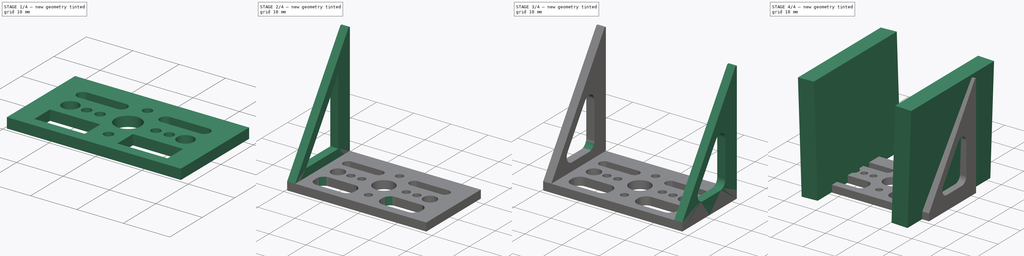
[diagram: build sequence overview — one tinted view per stage of 4, left to right]
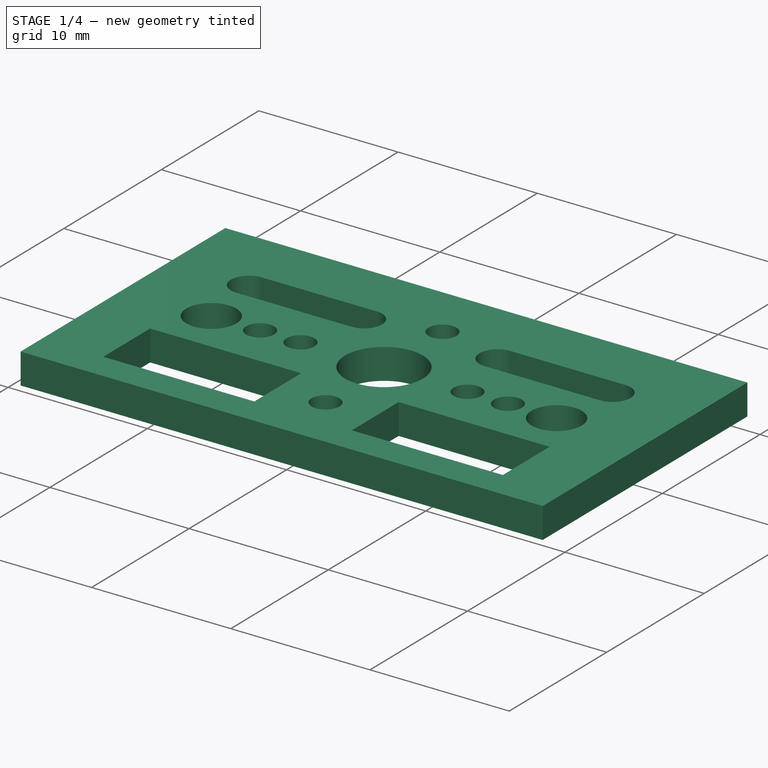
[diagram: stage 1 of 4 — iso view after this stage's code; geometry added in this stage tinted green]
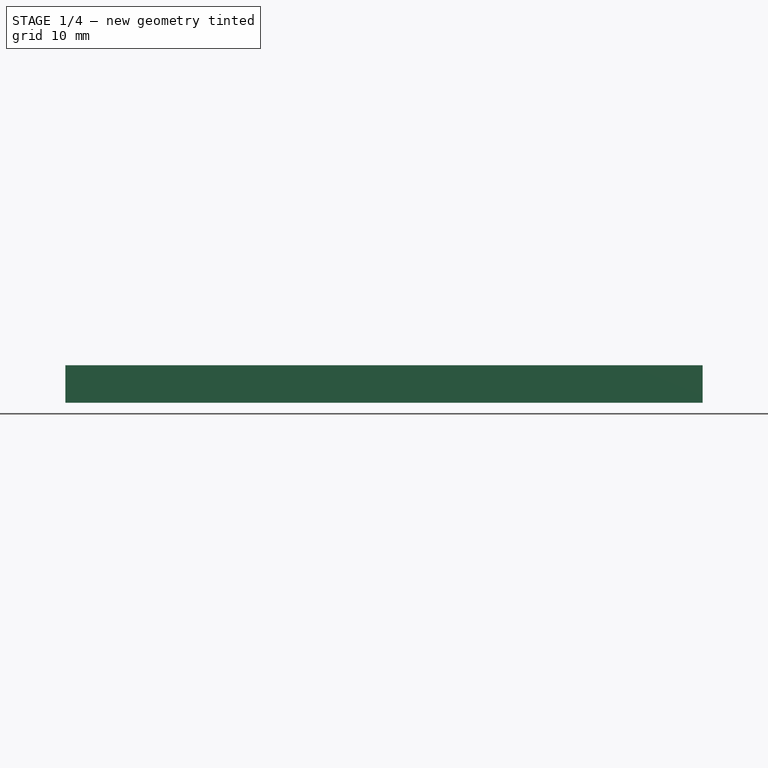
[diagram: stage 1 of 4 — front view after this stage's code; geometry added in this stage tinted green]
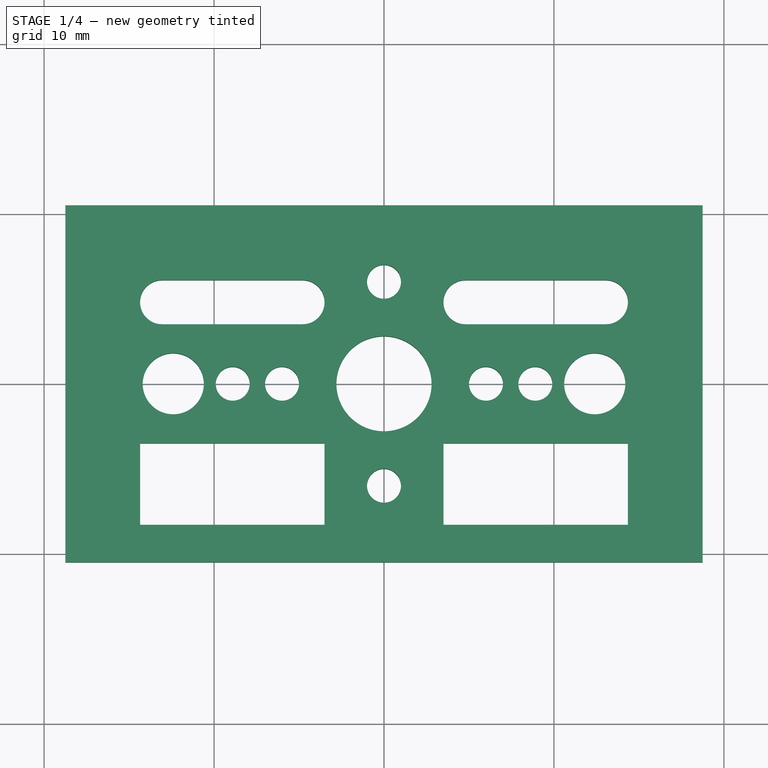
[diagram: stage 1 of 4 — top view after this stage's code; geometry added in this stage tinted green]
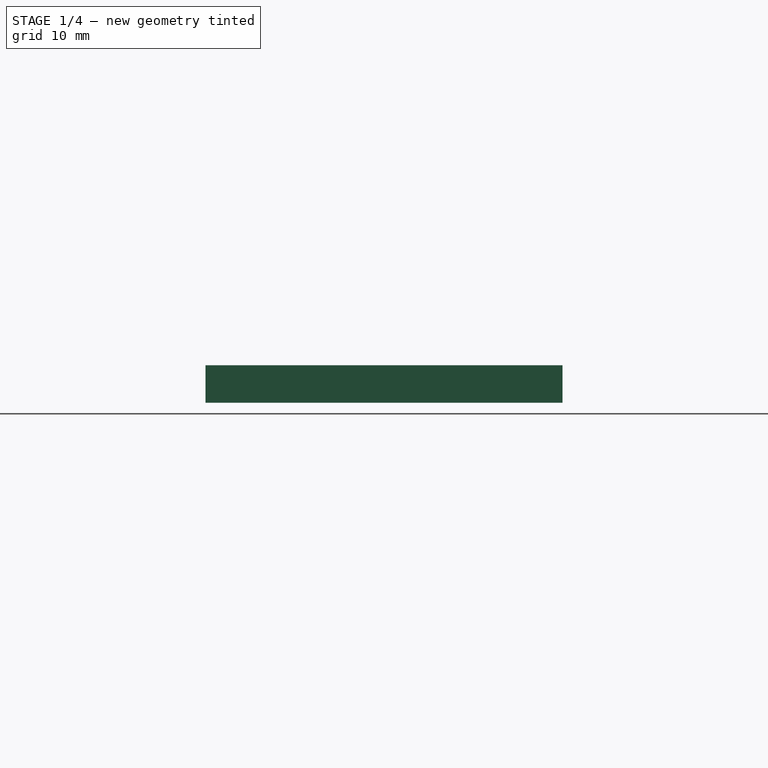
[diagram: stage 1 of 4 — right view after this stage's code; geometry added in this stage tinted green]
FCSTD DOCUMENT  (FreeCAD 0.20R0.20.2)
Label: 016
License: All rights reserved
LicenseURL: http://en.wikipedia.org/wiki/All_rights_reserved
objects: Sketcher::SketchObject×4, Part::Fillet×4, Part::Extrusion×3, Part::Box×2
note: 13 computed .brp shape members not serialized (recipe doc carries the construction recipe); baked Part::Feature solids carry a one-line shape summary decoded from their .brp

FEATURE [Sketcher::SketchObject] Sketch
  FullyConstrained = true
  sketch-geometry (29):
    g0: Circle CenterX=0 CenterY=0 CenterZ=0 NormalX=0 NormalY=0 NormalZ=1 AngleXU=0 Radius=2.8
    g1: LineSegment StartX=18.75 StartY=10.5 StartZ=0 EndX=18.75 EndY=-10.5 EndZ=0
    g2: LineSegment StartX=-18.75 StartY=10.5 StartZ=0 EndX=-18.75 EndY=-10.5 EndZ=0
    g3: LineSegment StartX=-14.35 StartY=6.1 StartZ=0 EndX=-3.5 EndY=6.1 EndZ=0
    g4: LineSegment StartX=-3.5 StartY=6.1 StartZ=0 EndX=-3.5 EndY=3.5 EndZ=0
    g5: LineSegment StartX=-3.5 StartY=3.5 StartZ=0 EndX=-14.35 EndY=3.5 EndZ=0
    g6: LineSegment StartX=-14.35 StartY=3.5 StartZ=0 EndX=-14.35 EndY=6.1 EndZ=0
    g7: LineSegment StartX=14.35 StartY=6.1 StartZ=0 EndX=3.5 EndY=6.1 EndZ=0
    g8: LineSegment StartX=3.5 StartY=6.1 StartZ=0 EndX=3.5 EndY=3.5 EndZ=0
    g9: LineSegment StartX=3.5 StartY=3.5 StartZ=0 EndX=14.35 EndY=3.5 EndZ=0
    g10: LineSegment StartX=14.35 StartY=3.5 StartZ=0 EndX=14.35 EndY=6.1 EndZ=0
    g11: LineSegment StartX=-14.35 StartY=-8.3 StartZ=0 EndX=-3.5 EndY=-8.3 EndZ=0
    g12: LineSegment StartX=-3.5 StartY=-8.3 StartZ=0 EndX=-3.5 EndY=-3.5 EndZ=0
    g13: LineSegment StartX=-3.5 StartY=-3.5 StartZ=0 EndX=-14.35 EndY=-3.5 EndZ=0
    g14: LineSegment StartX=-14.35 StartY=-3.5 StartZ=0 EndX=-14.35 EndY=-8.3 EndZ=0
    g15: LineSegment StartX=14.35 StartY=-8.3 StartZ=0 EndX=3.5 EndY=-8.3 EndZ=0
    g16: LineSegment StartX=3.5 StartY=-8.3 StartZ=0 EndX=3.5 EndY=-3.5 EndZ=0
    g17: LineSegment StartX=3.5 StartY=-3.5 StartZ=0 EndX=14.35 EndY=-3.5 EndZ=0
    g18: LineSegment StartX=14.35 StartY=-3.5 StartZ=0 EndX=14.35 EndY=-8.3 EndZ=0
    g19: LineSegment StartX=-18.75 StartY=10.5 StartZ=0 EndX=18.75 EndY=10.5 EndZ=0
    g20: LineSegment StartX=18.75 StartY=-10.5 StartZ=0 EndX=-18.75 EndY=-10.5 EndZ=0
    g21: Circle CenterX=-6 CenterY=0 CenterZ=0 NormalX=0 NormalY=0 NormalZ=1 AngleXU=0 Radius=1
    g22: Circle CenterX=6 CenterY=0 CenterZ=0 NormalX=0 NormalY=0 NormalZ=1 AngleXU=0 Radius=1
    g23: Circle CenterX=0 CenterY=6 CenterZ=0 NormalX=0 NormalY=0 NormalZ=1 AngleXU=0 Radius=1
    g24: Circle CenterX=0 CenterY=-6 CenterZ=0 NormalX=0 NormalY=0 NormalZ=1 AngleXU=0 Radius=1
    g25: Circle CenterX=-12.4 CenterY=0 CenterZ=0 NormalX=0 NormalY=0 NormalZ=1 AngleXU=0 Radius=1.8
    g26: Circle CenterX=12.4 CenterY=0 CenterZ=0 NormalX=0 NormalY=0 NormalZ=1 AngleXU=0 Radius=1.8
    g27: Circle CenterX=-8.9 CenterY=0 CenterZ=0 NormalX=0 NormalY=0 NormalZ=1 AngleXU=0 Radius=1
    g28: Circle CenterX=8.9 CenterY=0 CenterZ=0 NormalX=0 NormalY=0 NormalZ=1 AngleXU=0 Radius=1
  constraints (67):
    c: Block(g0)
    c: Vertical(g1)
    c: Vertical(g2)
    c: Coincident(g3,g4)
    c: Coincident(g4,g5)
    c: Coincident(g5,g6)
    c: Coincident(g6,g3)
    c: Horizontal(g3)
    c: Horizontal(g5)
    c: Vertical(g4)
    c: Vertical(g6)
    c: Block(g2)
    c: Distance(g2) = 21
    c: Distance(g1) = 21
    c: Coincident(g7,g8)
    c: Coincident(g8,g9)
    c: Coincident(g9,g10)
    c: Coincident(g10,g7)
    c: Horizontal(g7)
    c: Horizontal(g9)
    c: Vertical(g8)
    c: Vertical(g10)
    c: Coincident(g11,g12)
    c: Coincident(g12,g13)
    c: Coincident(g13,g14)
    c: Coincident(g14,g11)
    c: Horizontal(g11)
    c: Horizontal(g13)
    c: Vertical(g12)
    c: Vertical(g14)
    c: Coincident(g15,g16)
    c: Coincident(g16,g17)
    c: Coincident(g17,g18)
    c: Coincident(g18,g15)
    c: Horizontal(g15)
    c: Horizontal(g17)
    c: Vertical(g16)
    c: Vertical(g18)
    c: Block(g1)
    c: Coincident(g19,g2)
    c: Coincident(g19,g1)
    c: Horizontal(g19)
    c: Coincident(g20,g1)
    c: Coincident(g20,g2)
    c: Horizontal(g20)
    c: Block(g19)
    c: Block(g20)
    c: Distance(g3) = 10.85
    c: Distance(g7) = 10.85
    c: Distance(g15) = 10.85
    c: Distance(g13) = 10.85
    c: Block(g17)
    c: Block(g13)
    c: Block(g15)
    c: Block(g11)
    c: Block(g5)
    c: Block(g9)
    c: Distance(g4) = 2.6
    c: Distance(g8) = 2.6
    c: Block(g23)
    c: Block(g21)
    c: Block(g24)
    c: Block(g22)
    c: Block(g25)
    c: Block(g26)
    c: Block(g27)
    c: Block(g28)
FEATURE [Part::Extrusion] Extrude
  Base = -> Sketch
  Dir = (0,0,1)
  DirMode = 2
  FaceMakerClass = Part::FaceMakerBullseye
  LengthFwd = 2.2
  LengthRev = 0
  Solid = true
  Symmetric = false
FEATURE [Part::Fillet] Fillet  label="motorHolder"
  Base = -> Extrude
  Edges = 8 edges r=1.29: [Edge37,Edge38,Edge41,Edge44,Edge49,Edge50,Edge53,Edge56]
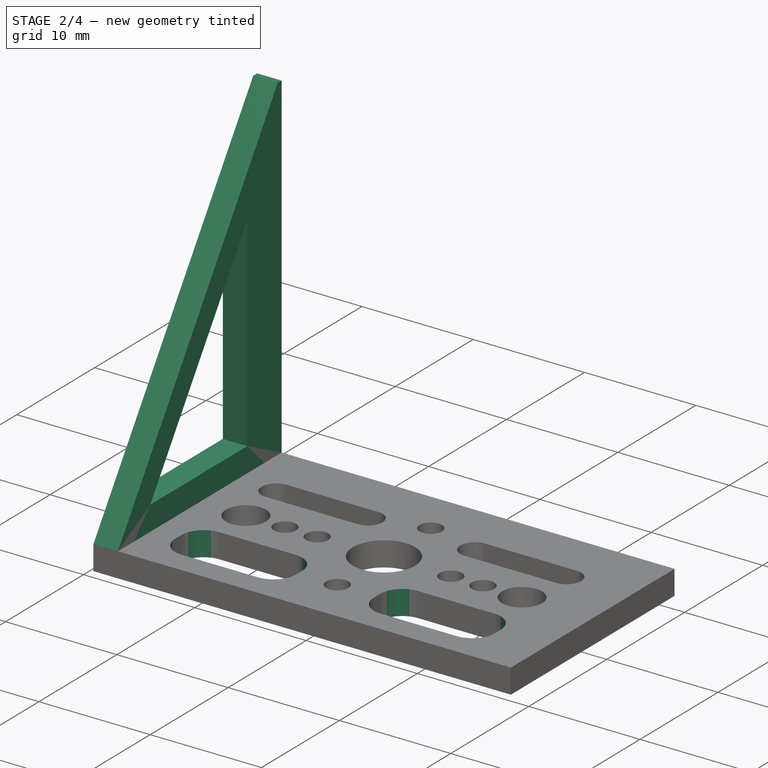
[diagram: stage 2 of 4 — iso view after this stage's code; geometry added in this stage tinted green]
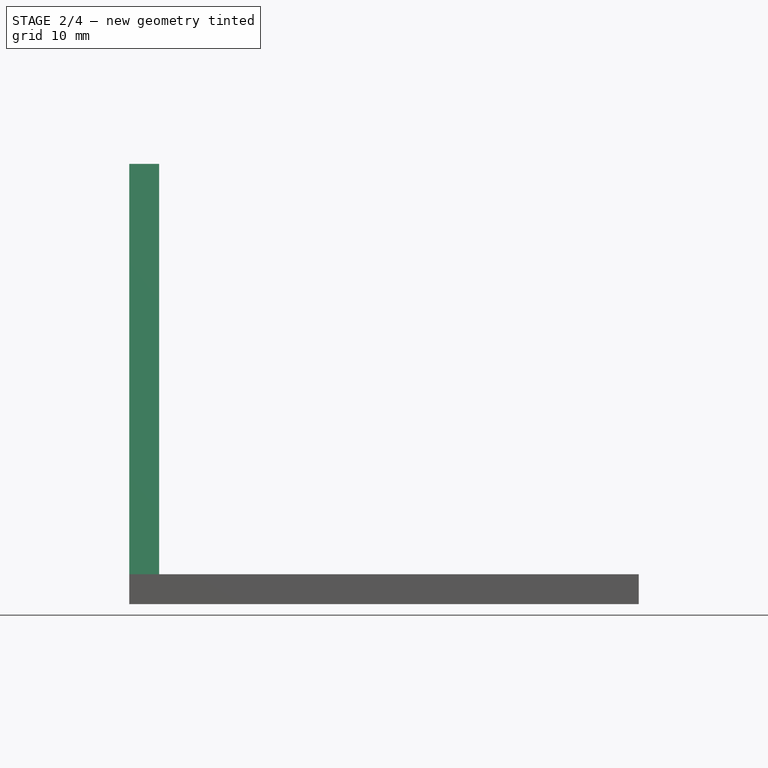
[diagram: stage 2 of 4 — front view after this stage's code; geometry added in this stage tinted green]
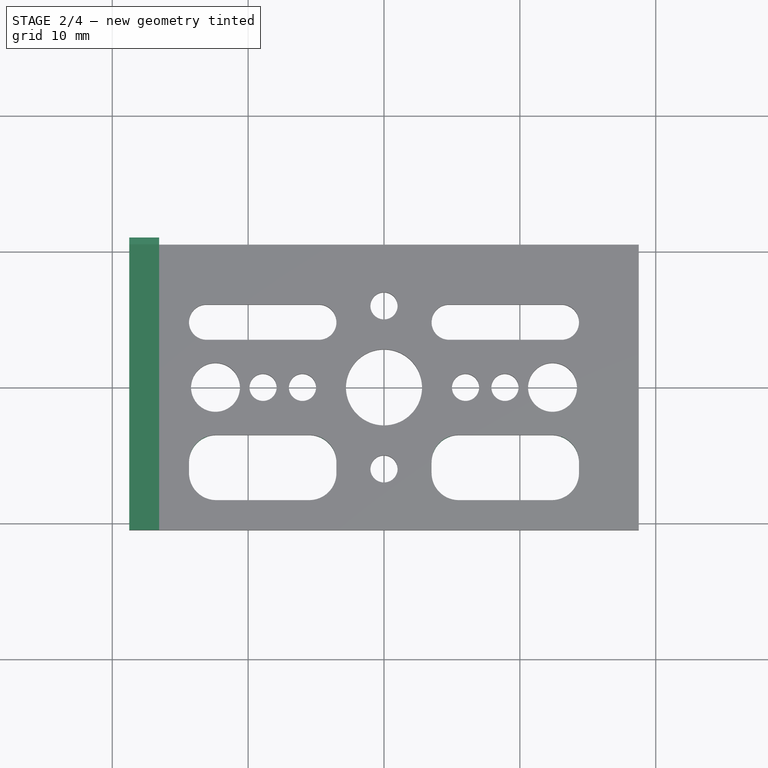
[diagram: stage 2 of 4 — top view after this stage's code; geometry added in this stage tinted green]
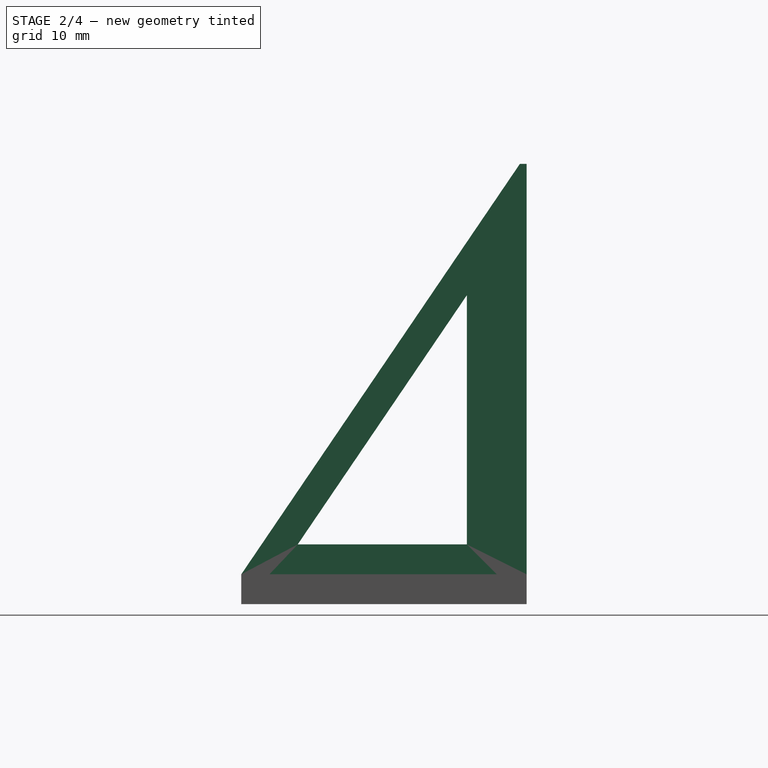
[diagram: stage 2 of 4 — right view after this stage's code; geometry added in this stage tinted green]
FEATURE [Part::Extrusion] Extrude001  label="side"
  Base = -> Sketch001
  Dir = (1,0,0)
  DirMode = 2
  FaceMakerClass = Part::FaceMakerBullseye
  LengthFwd = 2.2
  LengthRev = 0
  Placement = pos=(-18.75,0,0) rot=(0,0,1;0rad)
  Solid = true
  Symmetric = false
FEATURE [Part::Fillet] Fillet004  label="motorHolder001"
  Base = -> Fillet
  Edges = 8 edges r=2: [Edge87,Edge88,Edge89,Edge90,Edge91,Edge92,Edge93,Edge94]
FEATURE [Sketcher::SketchObject] Sketch004
  FullyConstrained = false
  Placement = pos=(0,0,0) rot=(1,0,0;1.5708rad)
  sketch-geometry (28):
    g0: LineSegment StartX=-18.75 StartY=3e-16 StartZ=0 EndX=-18.75 EndY=32.4 EndZ=0
    g1: LineSegment StartX=-18.75 StartY=32.4 StartZ=0 EndX=18.75 EndY=32.4 EndZ=0
    g2: LineSegment StartX=18.75 StartY=3e-16 StartZ=0 EndX=18.75 EndY=32.4 EndZ=0
    g3: LineSegment StartX=-18.75 StartY=3e-16 StartZ=0 EndX=18.75 EndY=3e-16 EndZ=0
    g4: LineSegment StartX=20.8351 StartY=32.7478 StartZ=0 EndX=24.4972 EndY=30.4303 EndZ=0
    g5: LineSegment StartX=19.1017 StartY=34.1576 StartZ=0 EndX=17.8339 EndY=36.9702 EndZ=0
    g6: LineSegment StartX=-21.8169 StartY=33.5961 StartZ=0 EndX=-25.4365 EndY=31.1295 EndZ=0
    g7: LineSegment StartX=-19.0611 StartY=34.1225 StartZ=0 EndX=-13.2615 EndY=37.0113 EndZ=0
    g8: LineSegment StartX=-24.4045 StartY=-3.43176 StartZ=0 EndX=-26.2591 EndY=0.568839 EndZ=0
    g9: LineSegment StartX=-20.2146 StartY=-2.7191 StartZ=0 EndX=-14.5366 EndY=-5.2307 EndZ=0
    g10: LineSegment StartX=19.6941 StartY=-2.26944 StartZ=0 EndX=17.258 EndY=-3.70883 EndZ=0
    g11: LineSegment StartX=20.9192 StartY=-0.420453 StartZ=0 EndX=25.3198 EndY=4.22954 EndZ=0
    g12: LineSegment StartX=-19.0611 StartY=34.1225 StartZ=0 EndX=0 EndY=17.6537 EndZ=0
    g13: LineSegment StartX=19.6941 StartY=-2.26944 StartZ=0 EndX=-3.6e-15 EndY=14.7463 EndZ=0
    g14: LineSegment StartX=19.1017 StartY=34.1576 StartZ=0 EndX=0 EndY=17.6537 EndZ=0
    g15: LineSegment StartX=-20.2146 StartY=-2.7191 StartZ=0 EndX=-3.6e-15 EndY=14.7463 EndZ=0
    g16: LineSegment StartX=-1.68253 StartY=16.2 StartZ=0 EndX=-24.4045 EndY=-3.43176 EndZ=0
    g17: LineSegment StartX=1.68253 StartY=16.2 StartZ=0 EndX=20.8351 EndY=32.7478 EndZ=0
    g18: LineSegment StartX=-1.68253 StartY=16.2 StartZ=0 EndX=-21.8169 EndY=33.5961 EndZ=0
    g19: LineSegment StartX=1.68253 StartY=16.2 StartZ=0 EndX=20.9192 EndY=-0.420453 EndZ=0
    g20: LineSegment StartX=-14.35 StartY=33.474 StartZ=0 EndX=-9.76536 EndY=34.6257 EndZ=0
    g21: LineSegment StartX=-23.0508 StartY=2.2 StartZ=0 EndX=-24.2436 EndY=5.62801 EndZ=0
    g22: LineSegment StartX=21.7002 StartY=28 StartZ=0 EndX=25.5666 EndY=24.384 EndZ=0
    g23: LineSegment StartX=14.35 StartY=33.6797 StartZ=0 EndX=9.19625 EndY=35.8185 EndZ=0
    g24: LineSegment StartX=-14.35 StartY=33.474 StartZ=0 EndX=-14.35 EndY=-2.2281 EndZ=0
    g25: LineSegment StartX=-23.0508 StartY=2.2 StartZ=0 EndX=20.1372 EndY=2.2 EndZ=0
    g26: LineSegment StartX=14.35 StartY=33.6797 StartZ=0 EndX=14.35 EndY=-2.31036 EndZ=0
    g27: LineSegment StartX=21.7002 StartY=28 StartZ=0 EndX=-23.0097 EndY=28 EndZ=0
  constraints (46):
    c: Vertical(g0)
    c: Distance(g0) = 32.4
    c: Coincident(g1,g0)
    c: Horizontal(g1)
    c: Vertical(g2)
    c: Coincident(g1,g2)
    c: Coincident(g3,g0)
    c: Coincident(g3,g2)
    c: Horizontal(g3)
    c: Block(g1)
    c: Block(g5)
    c: Block(g4)
    c: Block(g7)
    c: Block(g6)
    c: Block(g8)
    c: Block(g9)
    c: Block(g10)
    c: Block(g11)
    c: Coincident(g12,g7)
    c: Coincident(g19,g11)
    c: Coincident(g13,g10)
    c: Coincident(g18,g6)
    c: Coincident(g14,g5)
    c: Coincident(g16,g8)
    c: Coincident(g15,g9)
    c: Coincident(g17,g4)
    c: Coincident(g13,g15)
    c: Coincident(g18,g16)
    c: Coincident(g12,g14)
    c: Coincident(g19,g17)
    c: Block(g14)
    c: Block(g17)
    c: Block(g13)
    c: Block(g16)
    c: Block(g23)
    c: Block(g22)
    c: Block(g20)
    c: Block(g21)
    c: Coincident(g24,g20)
    c: Vertical(g24)
    c: Coincident(g25,g21)
    c: Horizontal(g25)
    c: Coincident(g26,g23)
    c: Vertical(g26)
    c: Coincident(g27,g22)
    c: Horizontal(g27)
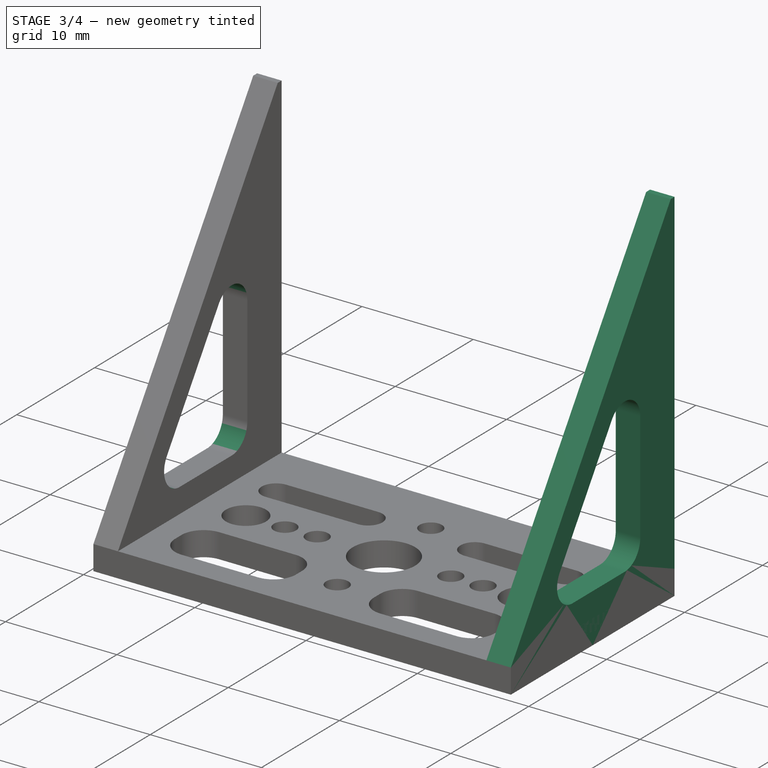
[diagram: stage 3 of 4 — iso view after this stage's code; geometry added in this stage tinted green]
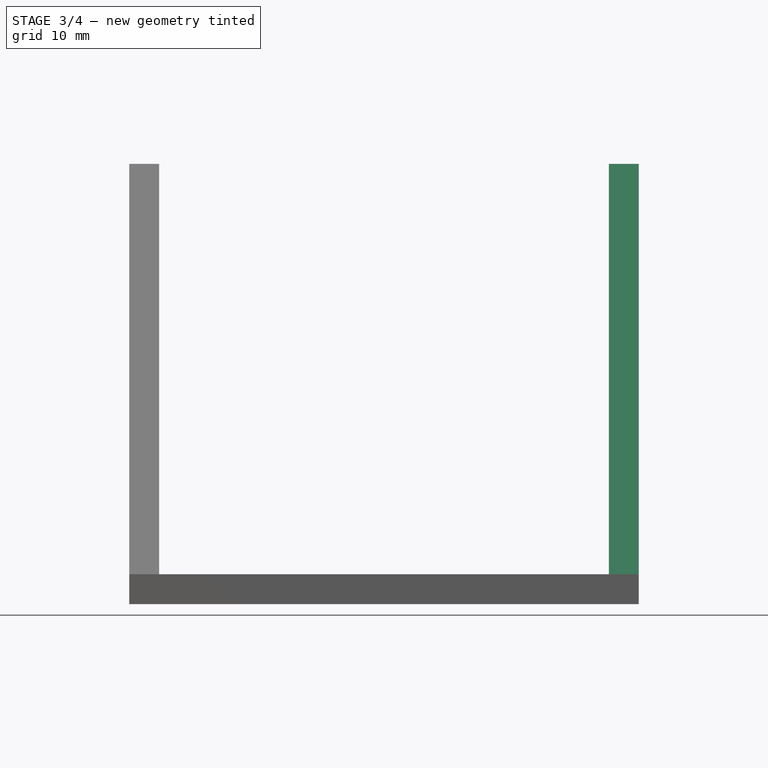
[diagram: stage 3 of 4 — front view after this stage's code; geometry added in this stage tinted green]
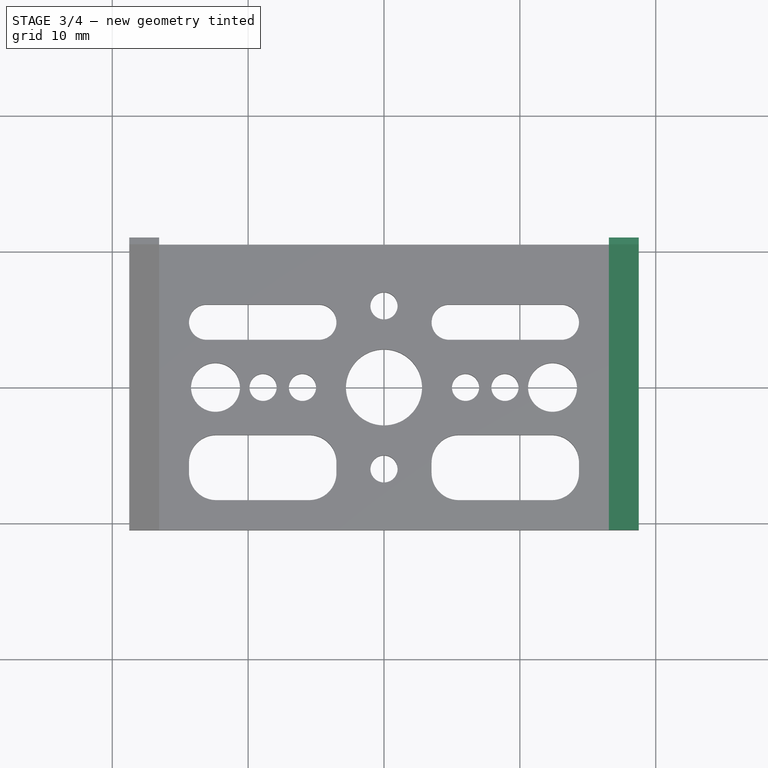
[diagram: stage 3 of 4 — top view after this stage's code; geometry added in this stage tinted green]
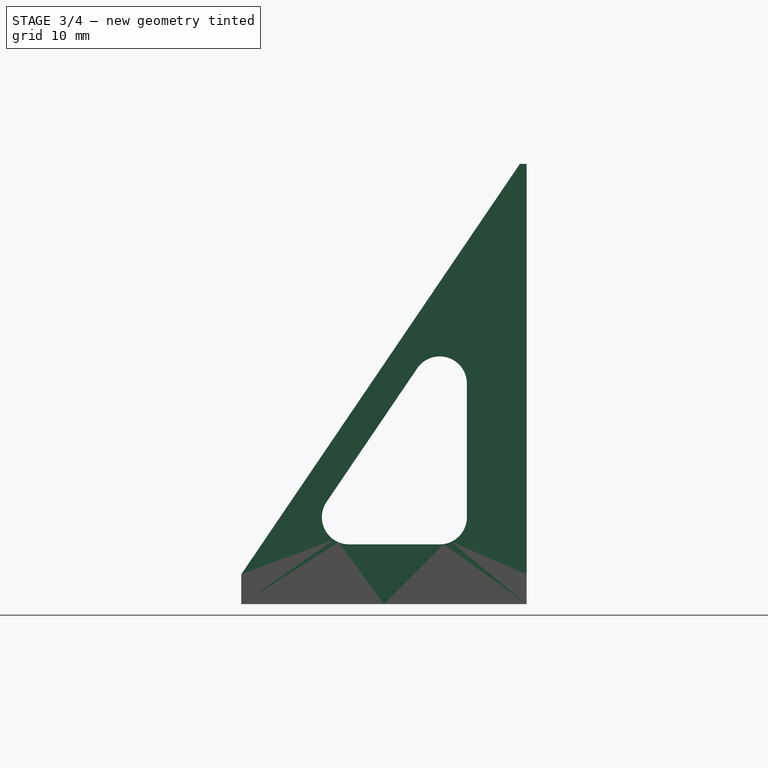
[diagram: stage 3 of 4 — right view after this stage's code; geometry added in this stage tinted green]
FEATURE [Sketcher::SketchObject] Sketch003
  FullyConstrained = true
  MapMode = 4
  Placement = pos=(0,0,0) rot=(0.57735,0.57735,0.57735;2.0944rad)
  sketch-geometry (10):
    g0: LineSegment StartX=0 StartY=0 StartZ=0 EndX=10.5 EndY=0 EndZ=0
    g1: LineSegment StartX=10.5 StartY=0 StartZ=0 EndX=10.5 EndY=2.2 EndZ=0
    g2: LineSegment StartX=10.5 StartY=2.2 StartZ=0 EndX=10.5 EndY=32.4 EndZ=0
    g3: LineSegment StartX=10.5 StartY=32.4 StartZ=0 EndX=10 EndY=32.4 EndZ=0
    g4: LineSegment StartX=0 StartY=0 StartZ=0 EndX=-10.5 EndY=0 EndZ=0
    g5: LineSegment StartX=-10.5 StartY=0 StartZ=0 EndX=-10.5 EndY=2.2 EndZ=0
    g6: LineSegment StartX=10 StartY=32.4 StartZ=0 EndX=-10.5 EndY=2.2 EndZ=0
    g7: LineSegment StartX=-6.34764 StartY=4.4 StartZ=0 EndX=6.1 EndY=22.7375 EndZ=0
    g8: LineSegment StartX=-6.34764 StartY=4.4 StartZ=0 EndX=6.1 EndY=4.4 EndZ=0
    g9: LineSegment StartX=6.1 StartY=4.4 StartZ=0 EndX=6.1 EndY=22.7375 EndZ=0
  constraints (33):
    c: Coincident(g0,g-1)
    c: Horizontal(g0)
    c: Distance(g0) = 10.5
    c: Coincident(g1,g0)
    c: Vertical(g1)
    c: Distance(g1) = 2.2
    c: Coincident(g2,g1)
    c: Vertical(g2)
    c: Distance(g2) = 30.2
    c: Coincident(g3,g2)
    c: Horizontal(g3)
    c: Distance(g3) = 0.5
    c: Coincident(g4,g0)
    c: Horizontal(g4)
    c: Distance(g4) = 10.5
    c: Coincident(g5,g4)
    c: Vertical(g5)
    c: Distance(g5) = 2.2
    c: Coincident(g6,g3)
    c: Coincident(g6,g5)
    c: Horizontal(g8)
    c: Parallel(g6,g7)
    c: Coincident(g8,g7)
    c: Block(g7)
    c: Block(g8)
    c: Block(g2)
    c: Block(g6)
    c: Block(g4)
    c: Block(g0)
    c: Vertical(g9)
    c: Coincident(g9,g7)
    c: Block(g9)
    c: Coincident(g9,g8)
FEATURE [Part::Extrusion] Extrude002  label="side001"
  Base = -> Sketch003
  Dir = (1,0,0)
  DirMode = 2
  FaceMakerClass = Part::FaceMakerBullseye
  LengthFwd = 2.2
  LengthRev = 0
  Placement = pos=(16.55,0,0) rot=(0,0,1;0rad)
  Solid = true
  Symmetric = false
FEATURE [Part::Fillet] Fillet002  label="side002"
  Base = -> Extrude002
  Edges = 3 edges r=2: [Edge22,Edge23,Edge26]
FEATURE [Part::Fillet] Fillet003  label="side003"
  Base = -> Extrude001
  Edges = 3 edges r=2: [Edge22,Edge23,Edge26]
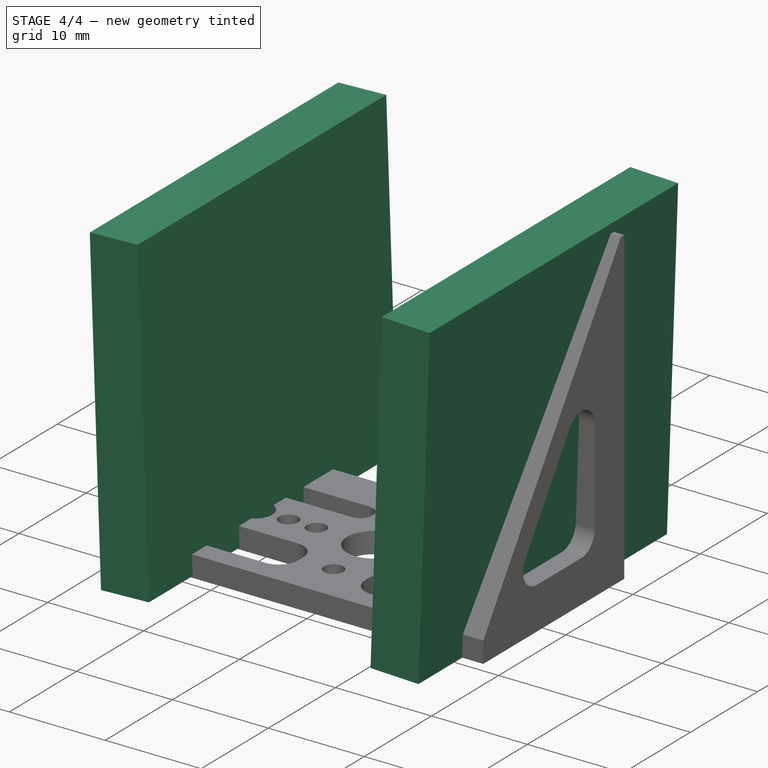
[diagram: stage 4 of 4 — iso view after this stage's code; geometry added in this stage tinted green]
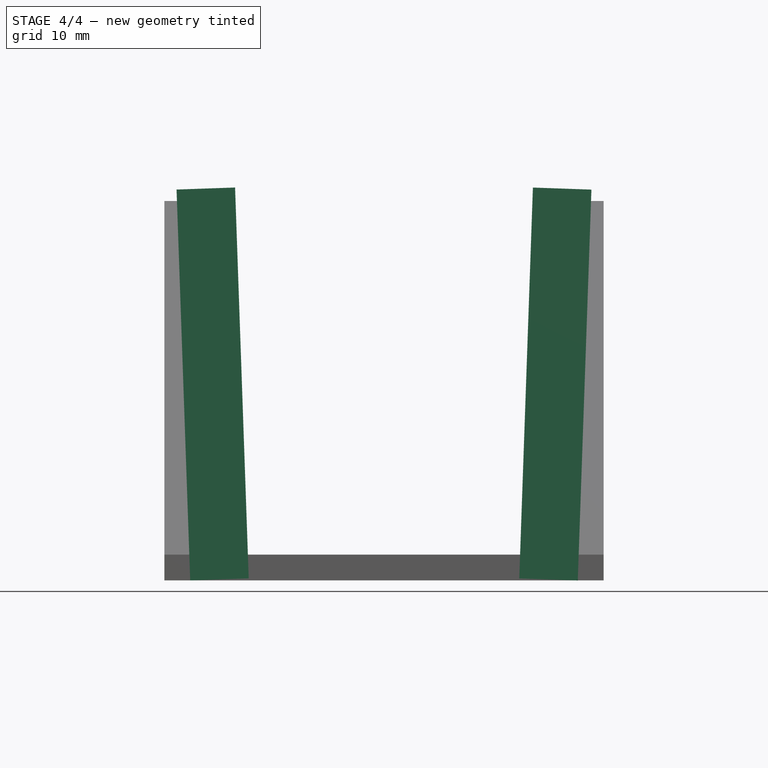
[diagram: stage 4 of 4 — front view after this stage's code; geometry added in this stage tinted green]
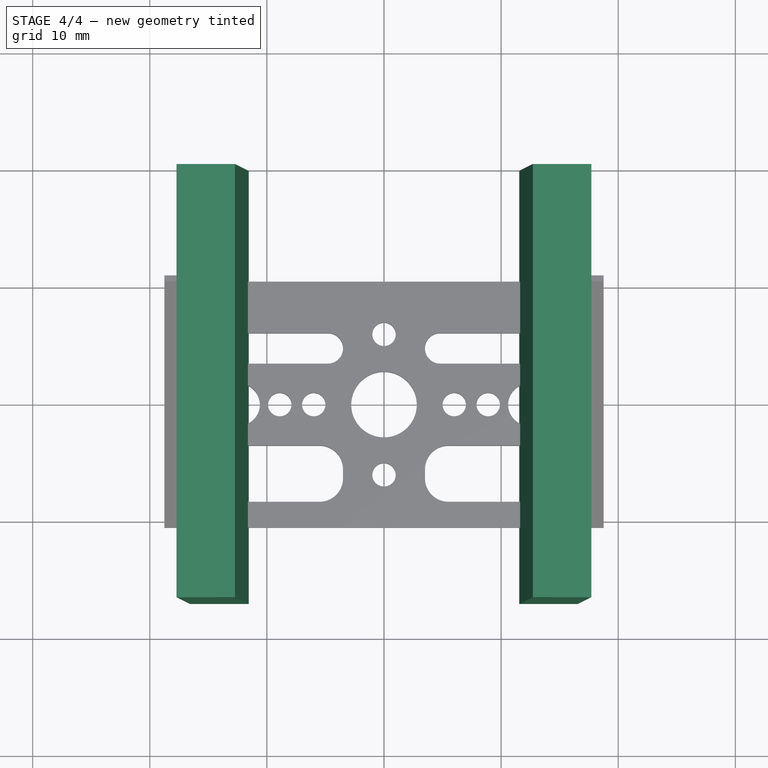
[diagram: stage 4 of 4 — top view after this stage's code; geometry added in this stage tinted green]
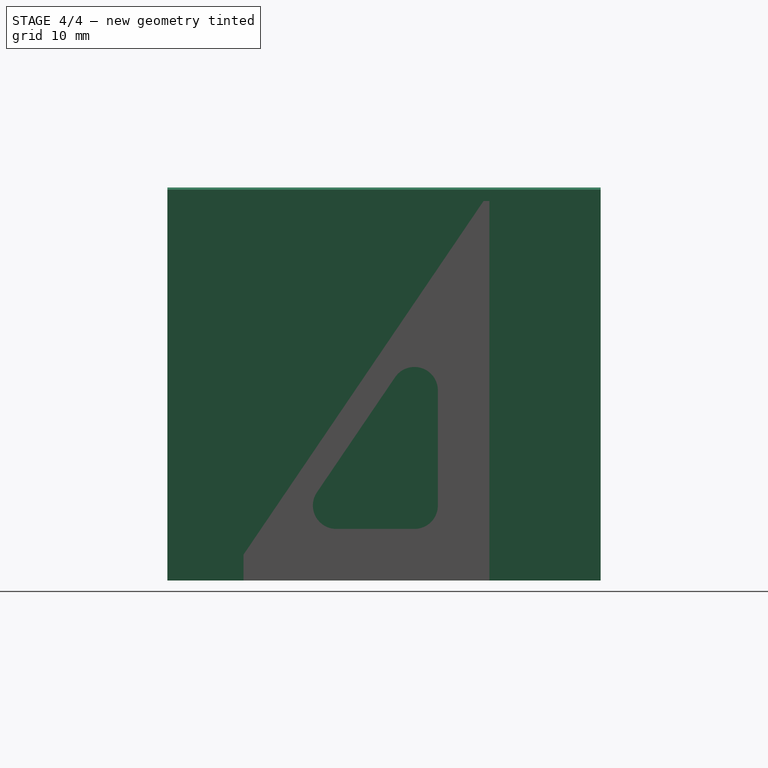
[diagram: stage 4 of 4 — right view after this stage's code; geometry added in this stage tinted green]
FEATURE [Sketcher::SketchObject] Sketch001
  FullyConstrained = true
  MapMode = 4
  Placement = pos=(0,0,0) rot=(0.57735,0.57735,0.57735;2.0944rad)
  sketch-geometry (10):
    g0: LineSegment StartX=0 StartY=0 StartZ=0 EndX=10.5 EndY=0 EndZ=0
    g1: LineSegment StartX=10.5 StartY=0 StartZ=0 EndX=10.5 EndY=2.2 EndZ=0
    g2: LineSegment StartX=10.5 StartY=2.2 StartZ=0 EndX=10.5 EndY=32.4 EndZ=0
    g3: LineSegment StartX=10.5 StartY=32.4 StartZ=0 EndX=10 EndY=32.4 EndZ=0
    g4: LineSegment StartX=0 StartY=0 StartZ=0 EndX=-10.5 EndY=0 EndZ=0
    g5: LineSegment StartX=-10.5 StartY=0 StartZ=0 EndX=-10.5 EndY=2.2 EndZ=0
    g6: LineSegment StartX=10 StartY=32.4 StartZ=0 EndX=-10.5 EndY=2.2 EndZ=0
    g7: LineSegment StartX=-6.34764 StartY=4.4 StartZ=0 EndX=6.1 EndY=22.7375 EndZ=0
    g8: LineSegment StartX=-6.34764 StartY=4.4 StartZ=0 EndX=6.1 EndY=4.4 EndZ=0
    g9: LineSegment StartX=6.1 StartY=4.4 StartZ=0 EndX=6.1 EndY=22.7375 EndZ=0
  constraints (34):
    c: Coincident(g0,g-1)
    c: Horizontal(g0)
    c: Distance(g0) = 10.5
    c: Coincident(g1,g0)
    c: Vertical(g1)
    c: Distance(g1) = 2.2
    c: Coincident(g2,g1)
    c: Vertical(g2)
    c: Distance(g2) = 30.2
    c: Coincident(g3,g2)
    c: Horizontal(g3)
    c: Distance(g3) = 0.5
    c: Coincident(g4,g0)
    c: Horizontal(g4)
    c: Distance(g4) = 10.5
    c: Coincident(g5,g4)
    c: Vertical(g5)
    c: Distance(g5) = 2.2
    c: Coincident(g6,g3)
    c: Coincident(g6,g5)
    c: Horizontal(g8)
    c: Parallel(g6,g7)
    c: Coincident(g8,g7)
    c: Block(g7)
    c: Block(g8)
    c: Block(g2)
    c: Block(g6)
    c: Block(g4)
    c: Block(g0)
    c: Vertical(g9)
    c: Coincident(g9,g7)
    c: Block(g9)
    c: Coincident(g9,g8)
    c: Distance(g2) = 30.2
FEATURE [Part::Box] Box  label="removeFromSide"
  AttacherType = Attacher::AttachEngine3D
  Height = 33.4
  Length = 5
  Placement = pos=(11.55,-17,0.17) rot=(0,1,0;0.034907rad)
  Width = 37
FEATURE [Part::Box] Box001  label="removeFromSide001"
  AttacherType = Attacher::AttachEngine3D
  Height = 33.4
  Length = 5
  Placement = pos=(-16.55,-17,0) rot=(0,1,0;-0.034907rad)
  Width = 37
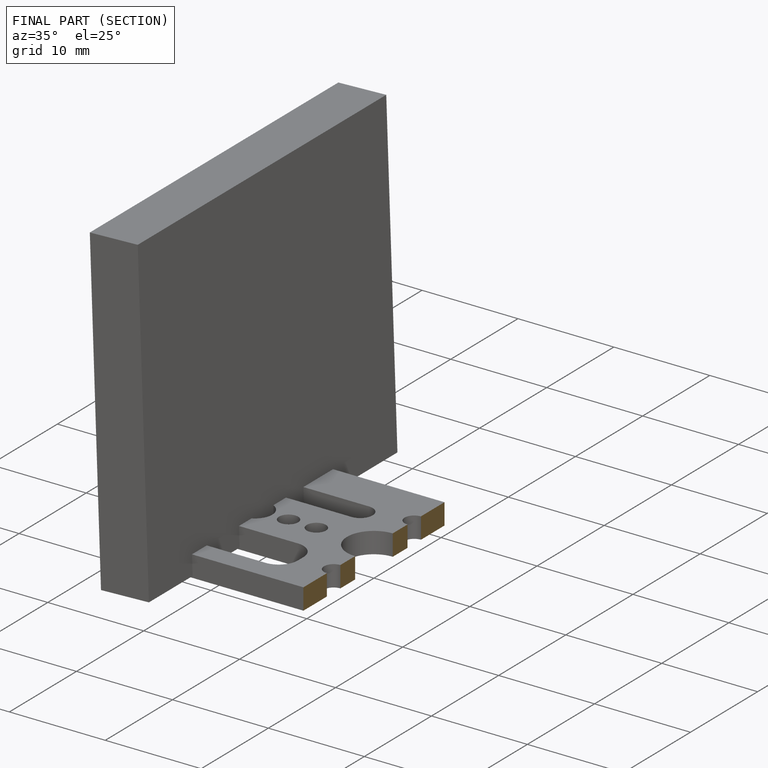
[diagram: finished part — half-section view (interior)]
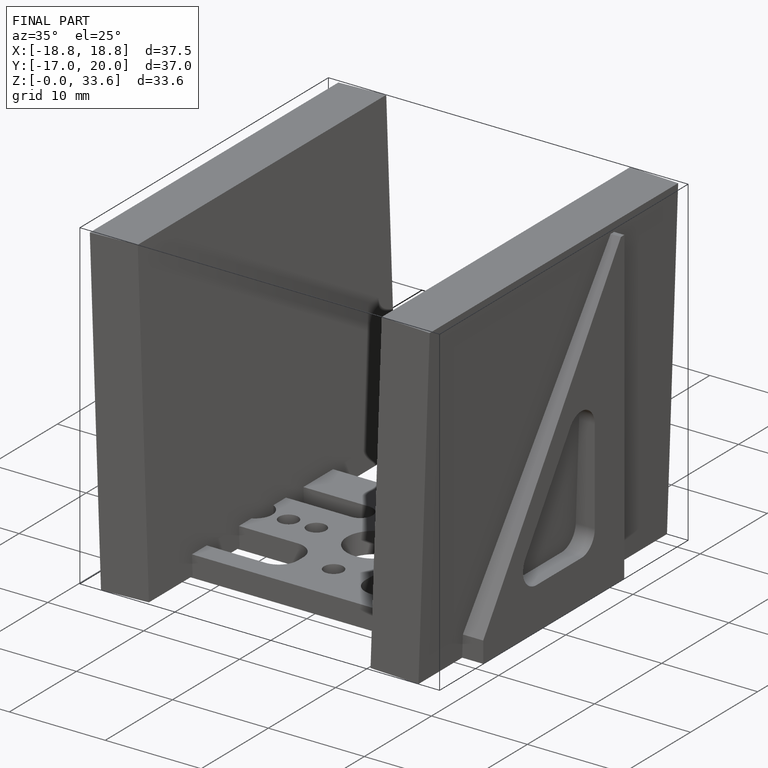
[diagram: finished part — iso view with bounding-box wireframe]
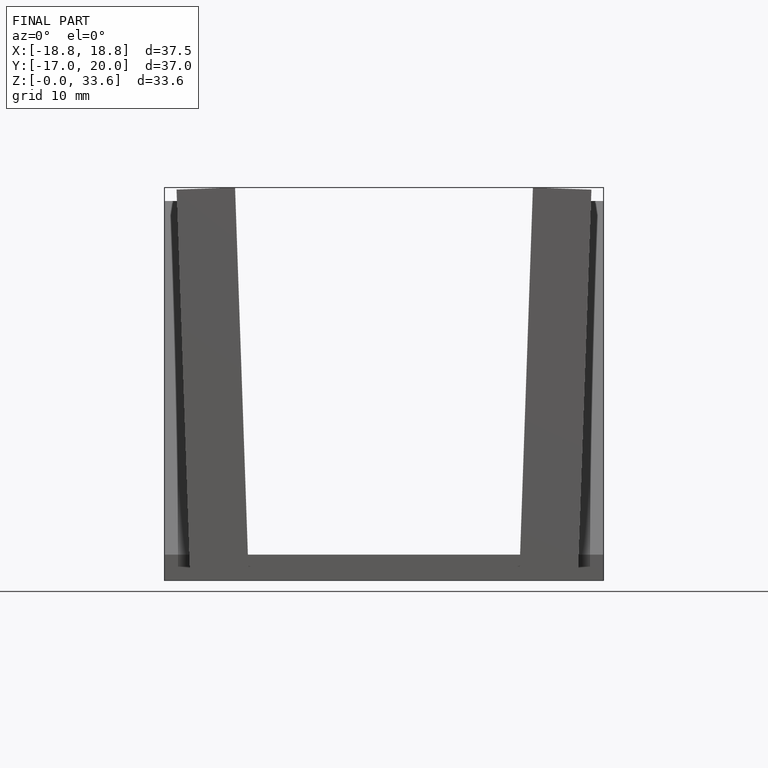
[diagram: finished part — front view with bounding-box wireframe]
